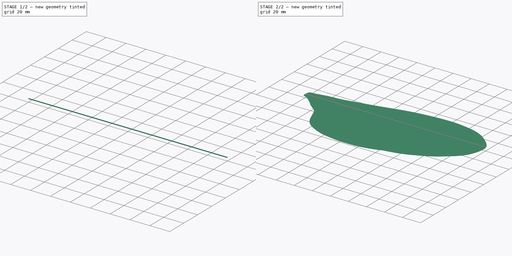
[diagram: build sequence overview — one tinted view per stage of 2, left to right]
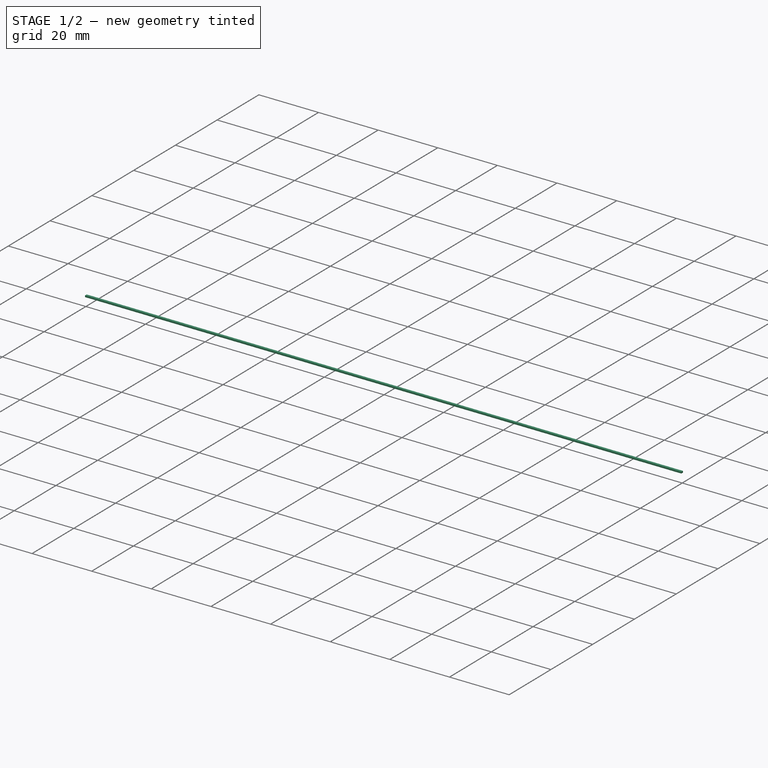
[diagram: stage 1 of 2 — iso view after this stage's code; geometry added in this stage tinted green]
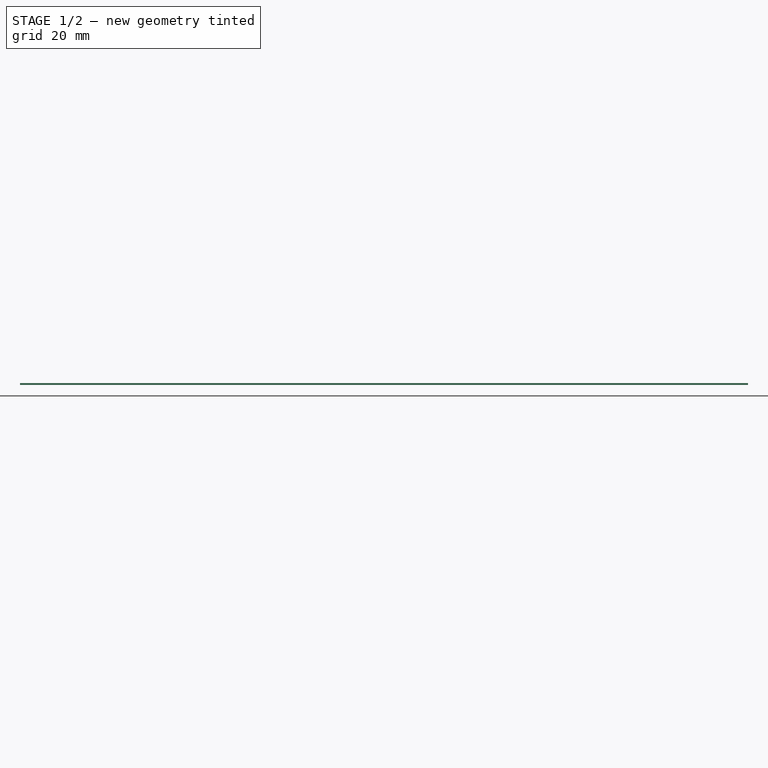
[diagram: stage 1 of 2 — front view after this stage's code; geometry added in this stage tinted green]
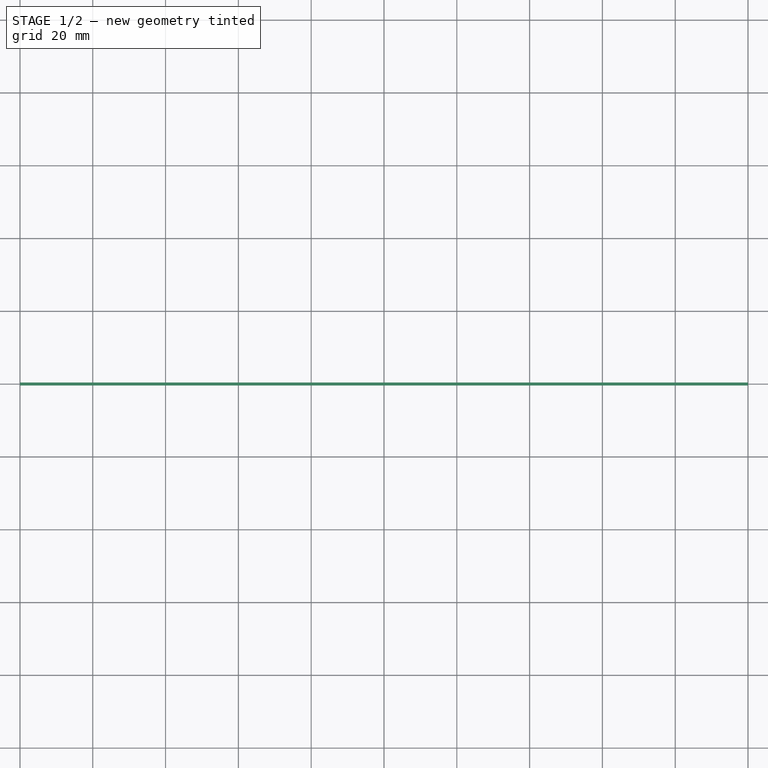
[diagram: stage 1 of 2 — top view after this stage's code; geometry added in this stage tinted green]
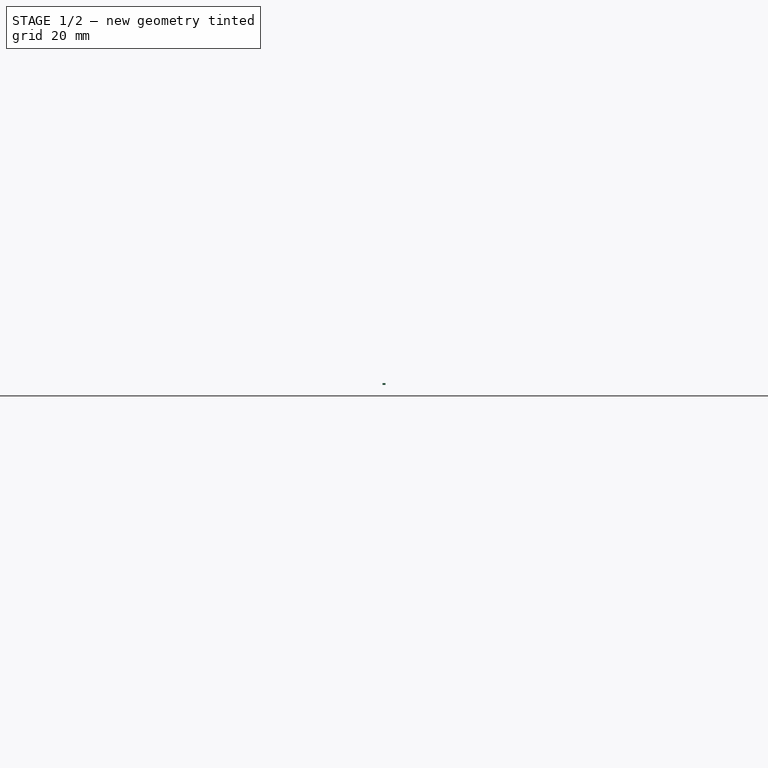
[diagram: stage 1 of 2 — right view after this stage's code; geometry added in this stage tinted green]
FCSTD DOCUMENT  (FreeCAD 0.20R29177 (Git))
Label: wing
License: All rights reserved
LicenseURL: http://en.wikipedia.org/wiki/All_rights_reserved
objects: Sketcher::SketchObject×2, PartDesign::Pad×2, Image::ImagePlane×1, Spreadsheet::Sheet×1, PartDesign::Body×1
note: 7 computed .brp shape members not serialized (recipe doc carries the construction recipe); baked Part::Feature solids carry a one-line shape summary decoded from their .brp

FEATURE [Image::ImagePlane] ImagePlane
  Placement = pos=(104.512,-19.0022,0) rot=(0,0,1;0.122173rad)
  XSize = 214.189
  YSize = 119.616
FEATURE [Sketcher::SketchObject] Sketch  label="VeinSketch"
  FullyConstrained = true
  MapMode = 5
  Support = -> [XY_Plane]
  expr: Constraints[10] = Spreadsheet.VeinWidth
  expr: Constraints[9] = Spreadsheet.VeinLength
  sketch-geometry (4):
    g0: LineSegment StartX=0 StartY=0.4 StartZ=0 EndX=200 EndY=0.4 EndZ=0
    g1: LineSegment StartX=200 StartY=0.4 StartZ=0 EndX=200 EndY=-0.4 EndZ=0
    g2: LineSegment StartX=200 StartY=-0.4 StartZ=0 EndX=0 EndY=-0.4 EndZ=0
    g3: LineSegment StartX=0 StartY=-0.4 StartZ=0 EndX=0 EndY=0.4 EndZ=0
  constraints (11):
    c: Coincident(g0,g1)
    c: Coincident(g1,g2)
    c: Coincident(g2,g3)
    c: Coincident(g3,g0)
    c: Horizontal(g0)
    c: Horizontal(g2)
    c: Vertical(g1)
    c: Vertical(g3)
    c: Symmetric(g3,g3,g-1)
    c: DistanceX(g0,g0) = 200
    c: DistanceY(g3,g3) = 0.8
FEATURE [Spreadsheet::Sheet] Spreadsheet
  cells = A2=Design Parameters; A3=RefLength; B3(RefLength)==1mm; A4=WingLength; B4(WingLength)==200mm; A5=VeinLength; B5(VeinLength)==WingLength; A6=VeinWidth; B6(VeinWidth)==0.8 * RefLength; A7=VeinHeight; B7(VeinHeight)==0.5 * RefLength; A8=WingThickness; B8(WingThickness)==0.01 * RefLength
FEATURE [PartDesign::Pad] Pad  label="VeinPad"
  Direction = (0,0,1)
  Length = 0.5
  Length2 = 10
  Midplane = true
  Profile = -> Sketch
  ReferenceAxis = -> Sketch [N_Axis]
  Type = 0
  expr: Length = Spreadsheet.VeinHeight
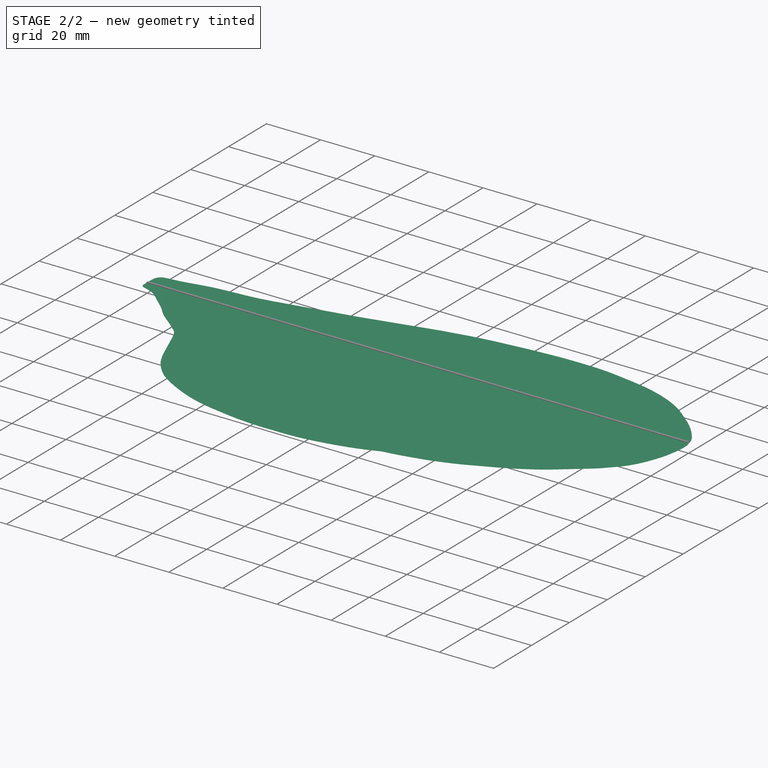
[diagram: stage 2 of 2 — iso view after this stage's code; geometry added in this stage tinted green]
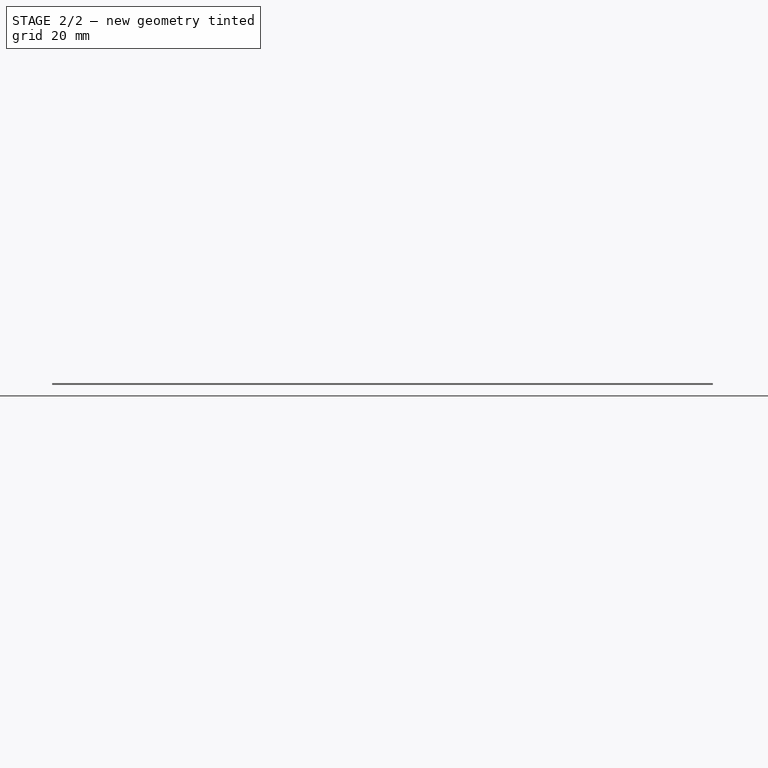
[diagram: stage 2 of 2 — front view after this stage's code; geometry added in this stage tinted green]
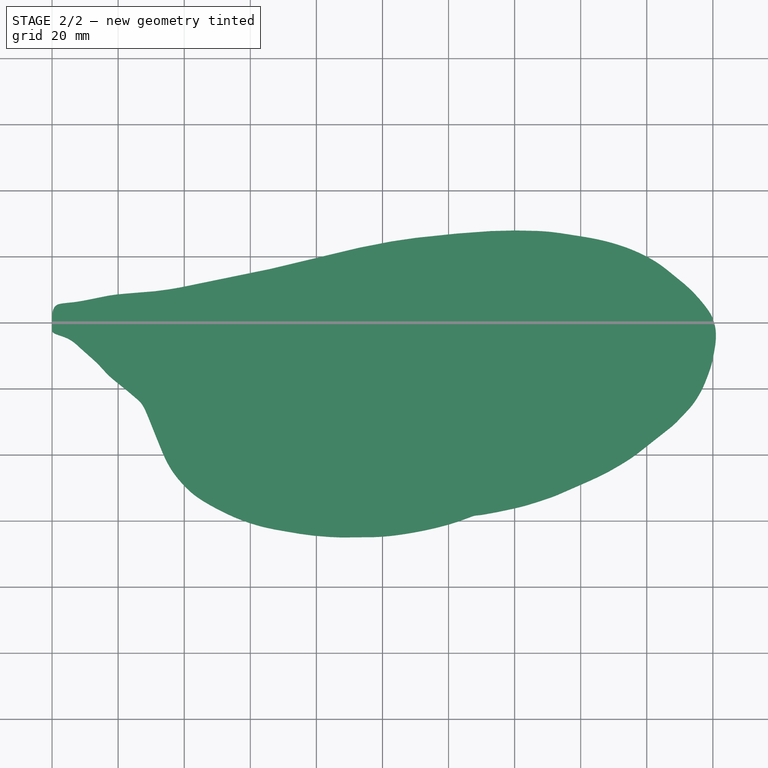
[diagram: stage 2 of 2 — top view after this stage's code; geometry added in this stage tinted green]
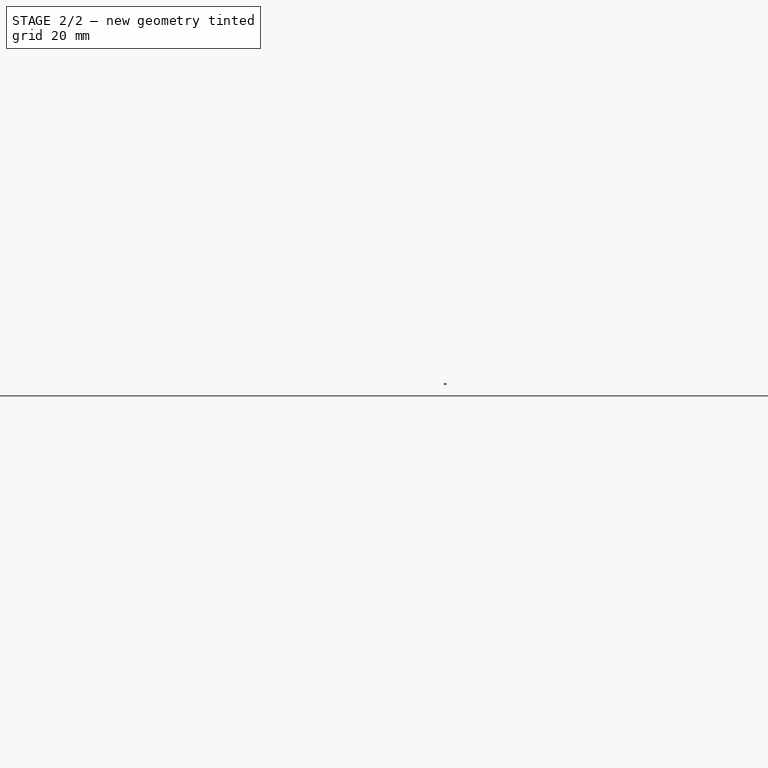
[diagram: stage 2 of 2 — right view after this stage's code; geometry added in this stage tinted green]
FEATURE [Sketcher::SketchObject] Sketch001  label="WingSketch"
  FullyConstrained = false
  MapMode = 5
  Support = -> [XY_Plane]
  sketch-geometry (188):
    g0-g92: Circle x93 (B-spline internal-alignment scaffolding for g93; pole/knot coordinates omitted)
    g93: BSplineCurve PolesCount=93 KnotsCount=94 Degree=3 IsPeriodic=1
    g94-g187: GeomPoint x94 (B-spline internal-alignment scaffolding for g93; pole/knot coordinates omitted)
  constraints (10):
    c: Weight(g0) = 1
    c: Coincident(g0,g-1)
    c: Equal(g0,g1)
    c: PointOnObject(g1,g-2)
    c: Equal(g0, g2-g91) x90
    c: PointOnObject(g91,g90)
    c: Equal(g0,g92)
    c: PointOnObject(g92,g-2)
    c: InternalAlignment(g0-g92 -> g93) x93
    c: InternalAlignment(g94-g187 -> g93) x94
FEATURE [PartDesign::Pad] Pad001  label="WingSurfacePad"
  BaseFeature = -> Pad
  Direction = (0,0,1)
  Length = 0.01
  Length2 = 10
  Midplane = true
  Profile = -> Sketch001
  ReferenceAxis = -> Sketch001 [N_Axis]
  Type = 0
  expr: Length = Spreadsheet.WingThickness
FEATURE [PartDesign::Body] Body
  Group = -> [Sketch,Pad,Sketch001,Pad001]
  Origin = -> Origin
  Tip = -> Pad001
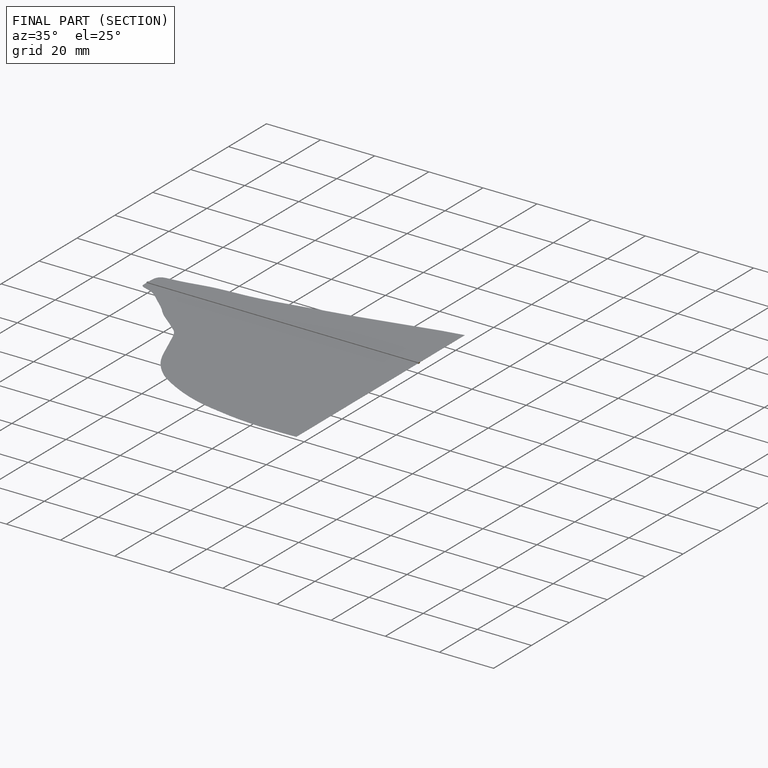
[diagram: finished part — half-section view (interior)]
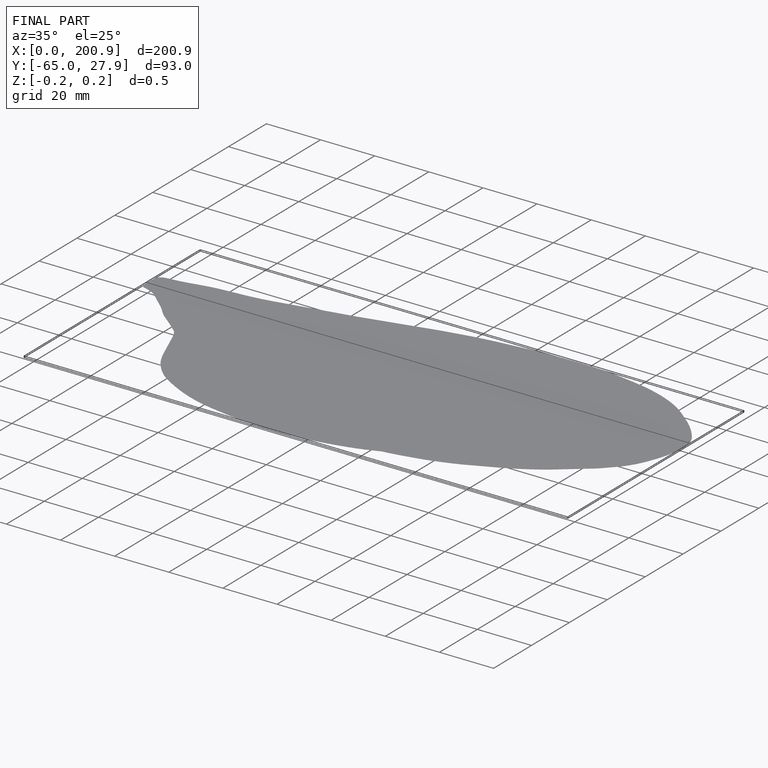
[diagram: finished part — iso view with bounding-box wireframe]
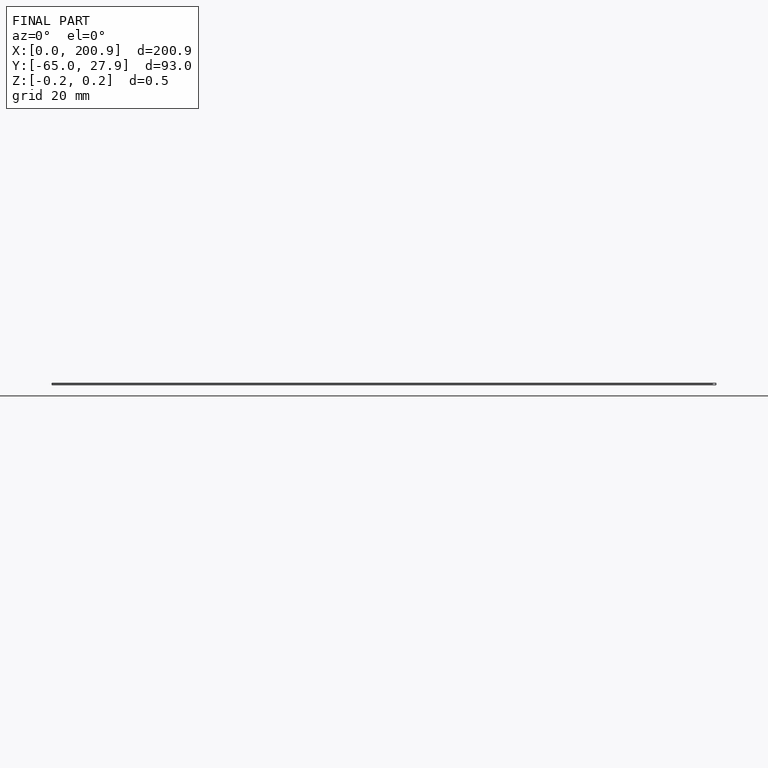
[diagram: finished part — front view with bounding-box wireframe]
